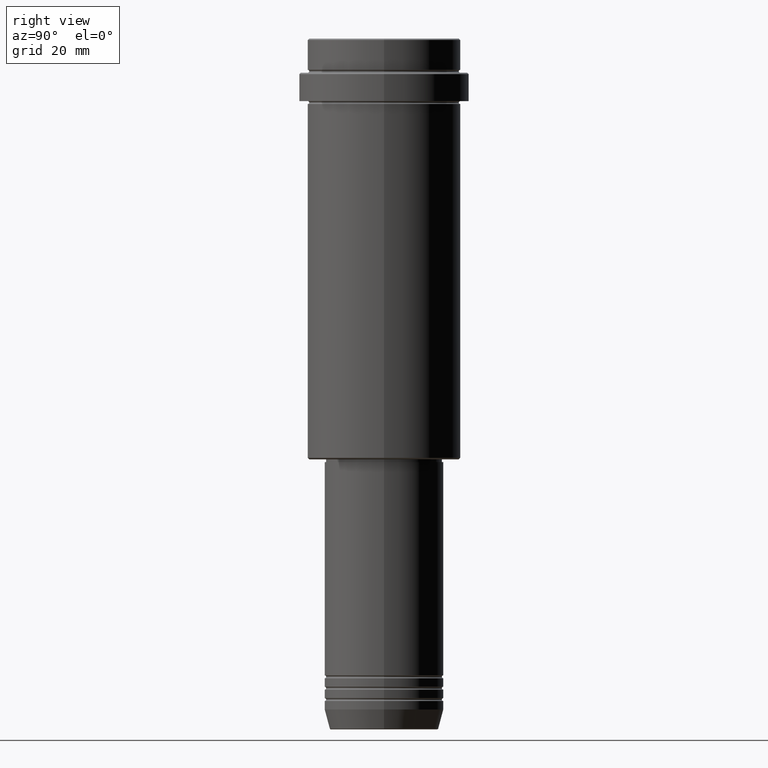
[diagram: clean part render]
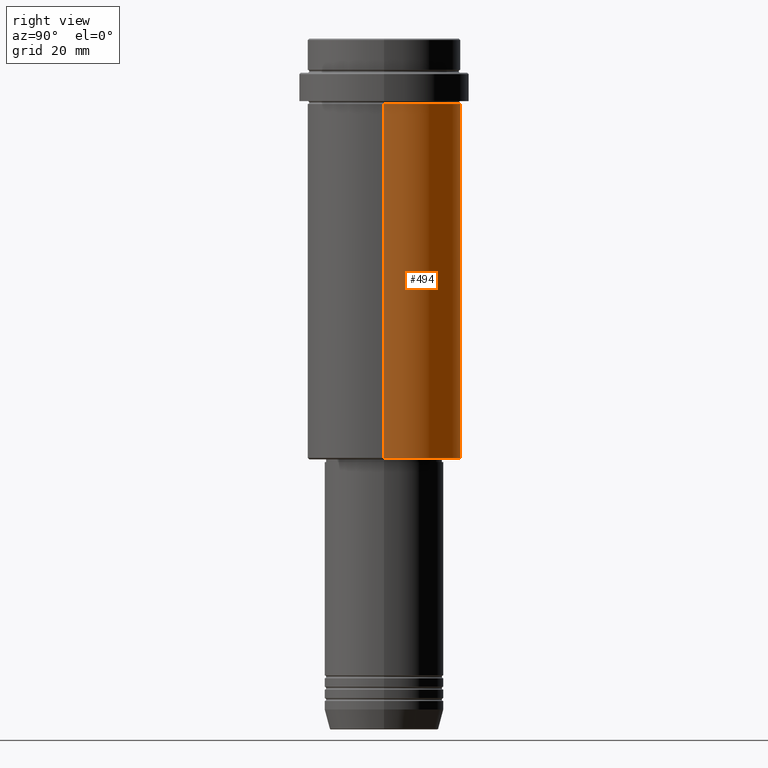
[diagram: same view with one face highlighted and labeled with its STEP entity id]
A machine part, right view. The second image highlights one B-rep face of the part: STEP entity #494.
In plain terms, the highlighted cylindrical surface (partial cylindrical patch) has radius 27 mm, axis along (-0, -0, 1).
Its self-contained STEP definition (entity closure, byte-faithful):
#1 = CARTESIAN_POINT ( 'NONE',  ( 0.000000000000000000, 0.000000000000000000, 0.000000000000000000 ) ) ;
#116 = DIRECTION ( 'NONE',  ( -1.000000000000000000, 0.000000000000000000, 0.000000000000000000 ) ) ;
#118 = CARTESIAN_POINT ( 'NONE',  ( -26.99999999999999645, 3.306546357697853339E-15, -23.00000000000000000 ) ) ;
#124 = FACE_OUTER_BOUND ( 'NONE', #469, .T. ) ;
#135 = CIRCLE ( 'NONE', #1113, 26.99999999999999645 ) ;
#177 = CARTESIAN_POINT ( 'NONE',  ( 26.99999999999999645, 0.000000000000000000, 0.000000000000000000 ) ) ;
#200 = CARTESIAN_POINT ( 'NONE',  ( 26.99999999999999645, 0.000000000000000000, -147.5000000000000853 ) ) ;
#207 = ORIENTED_EDGE ( 'NONE', *, *, #887, .F. ) ;
#221 = DIRECTION ( 'NONE',  ( 1.000000000000000000, 0.000000000000000000, 0.000000000000000000 ) ) ;
#362 = VERTEX_POINT ( 'NONE', #1217 ) ;
#376 = AXIS2_PLACEMENT_3D ( 'NONE', #1, #447, #221 ) ;
#408 = VECTOR ( 'NONE', #1190, 1000.000000000000000 ) ;
#419 = CARTESIAN_POINT ( 'NONE',  ( -26.99999999999999645, 3.306546357697853339E-15, 0.000000000000000000 ) ) ;
#436 = CIRCLE ( 'NONE', #502, 26.99999999999999645 ) ;
#447 = DIRECTION ( 'NONE',  ( -0.000000000000000000, -0.000000000000000000, 1.000000000000000000 ) ) ;
#469 = EDGE_LOOP ( 'NONE', ( #1129, #1321, #207, #1314 ) ) ;
#494 = ADVANCED_FACE ( 'NONE', ( #124 ), #571, .T. ) ;
#502 = AXIS2_PLACEMENT_3D ( 'NONE', #1002, #1017, #570 ) ;
#536 = EDGE_CURVE ( 'NONE', #751, #1117, #1379, .T. ) ;
#570 = DIRECTION ( 'NONE',  ( 1.000000000000000000, 0.000000000000000000, 0.000000000000000000 ) ) ;
#571 = CYLINDRICAL_SURFACE ( 'NONE', #376, 26.99999999999999645 ) ;
#669 = VECTOR ( 'NONE', #1142, 1000.000000000000000 ) ;
#751 = VERTEX_POINT ( 'NONE', #1238 ) ;
#818 = VERTEX_POINT ( 'NONE', #200 ) ;
#887 = EDGE_CURVE ( 'NONE', #362, #1117, #436, .T. ) ;
#957 = CARTESIAN_POINT ( 'NONE',  ( 0.000000000000000000, 0.000000000000000000, -147.5000000000000853 ) ) ;
#1002 = CARTESIAN_POINT ( 'NONE',  ( 0.000000000000000000, 0.000000000000000000, -23.00000000000000000 ) ) ;
#1017 = DIRECTION ( 'NONE',  ( -0.000000000000000000, -0.000000000000000000, 1.000000000000000000 ) ) ;
#1113 = AXIS2_PLACEMENT_3D ( 'NONE', #957, #1298, #116 ) ;
#1117 = VERTEX_POINT ( 'NONE', #118 ) ;
#1129 = ORIENTED_EDGE ( 'NONE', *, *, #1415, .T. ) ;
#1142 = DIRECTION ( 'NONE',  ( -0.000000000000000000, -0.000000000000000000, 1.000000000000000000 ) ) ;
#1157 = LINE ( 'NONE', #177, #669 ) ;
#1190 = DIRECTION ( 'NONE',  ( -0.000000000000000000, -0.000000000000000000, 1.000000000000000000 ) ) ;
#1217 = CARTESIAN_POINT ( 'NONE',  ( 26.99999999999999645, 0.000000000000000000, -23.00000000000000000 ) ) ;
#1238 = CARTESIAN_POINT ( 'NONE',  ( -26.99999999999999645, 3.306546357697853339E-15, -147.5000000000000853 ) ) ;
#1286 = EDGE_CURVE ( 'NONE', #818, #362, #1157, .T. ) ;
#1298 = DIRECTION ( 'NONE',  ( -0.000000000000000000, -0.000000000000000000, 1.000000000000000000 ) ) ;
#1314 = ORIENTED_EDGE ( 'NONE', *, *, #1286, .F. ) ;
#1321 = ORIENTED_EDGE ( 'NONE', *, *, #536, .T. ) ;
#1379 = LINE ( 'NONE', #419, #408 ) ;
#1415 = EDGE_CURVE ( 'NONE', #818, #751, #135, .T. ) ;